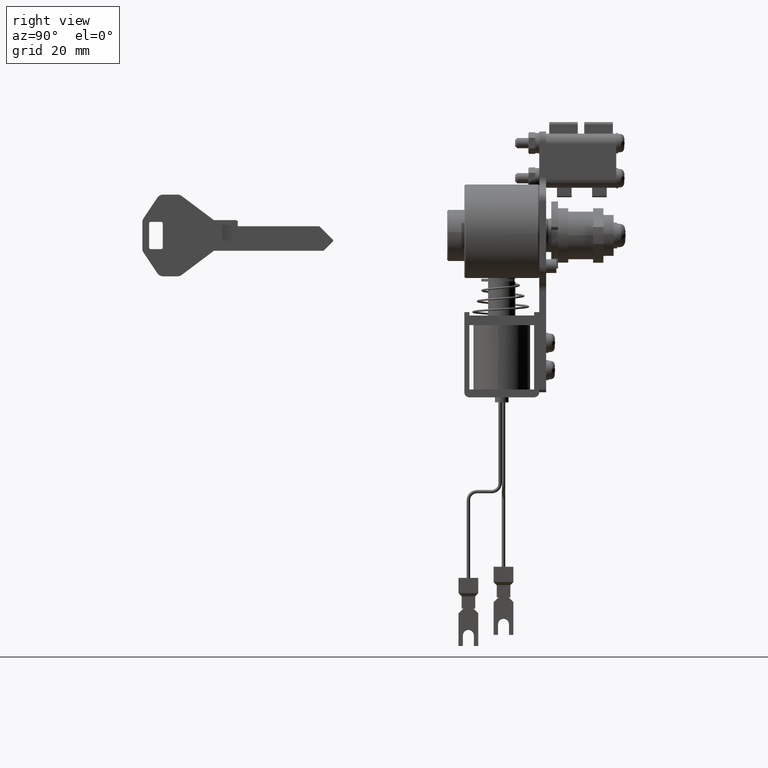
[diagram: clean part render]
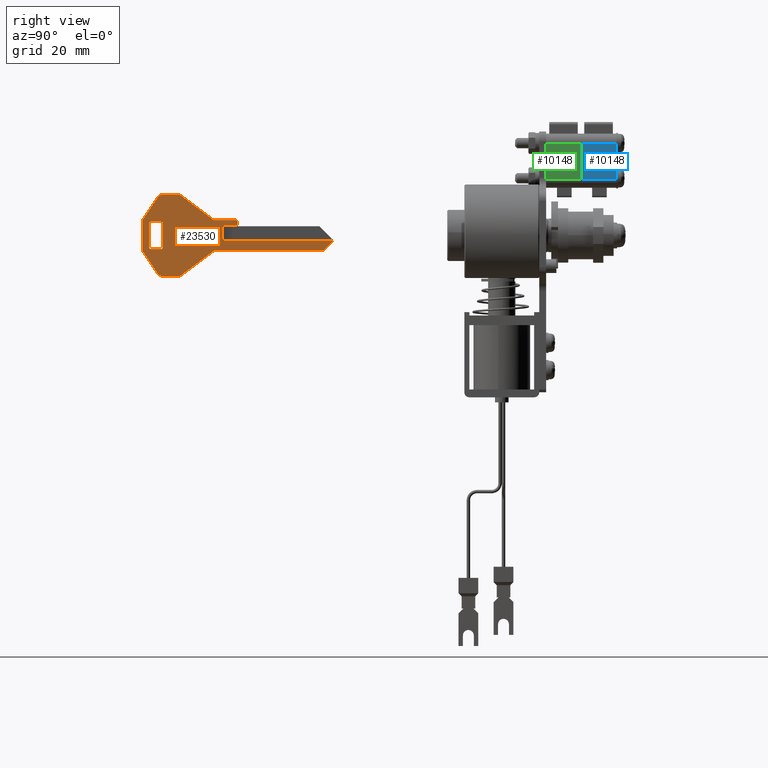
[diagram: same view with three faces highlighted in distinct colors, each labeled with its STEP entity id]
A machine part, right view with three faces highlighted in distinct colors.
Their STEP definitions:

[orange] entity #23530 — the highlighted face is a freeform B-spline surface patch.
#22681=CARTESIAN_POINT('',(-86.992412567850010,0.900000000000000,4.0));
#22682=VERTEX_POINT('',#22681);
#22688=CARTESIAN_POINT('',(-83.992412567850010,0.900000000000012,4.0));
#22689=VERTEX_POINT('',#22688);
#22690=CARTESIAN_POINT('',(-83.992412567850010,0.900000000000012,4.0));
#22691=CARTESIAN_POINT('',(-86.992412567850010,0.900000000000000,4.0));
#22692=QUASI_UNIFORM_CURVE('',1,(#22690,#22691),.UNSPECIFIED.,.F.,.U.);
#22693=EDGE_CURVE('',#22689,#22682,#22692,.T.);
#22733=CARTESIAN_POINT('',(-83.492412567850010,0.900000000000012,3.500000000000000));
#22734=VERTEX_POINT('',#22733);
#22735=CARTESIAN_POINT('',(-83.492412567850010,0.900000000000012,3.500000000000000));
#22736=CARTESIAN_POINT('',(-83.492412567850010,0.900000000000012,4.000000000000000));
#22737=CARTESIAN_POINT('',(-83.992412567850010,0.900000000000012,4.0));
#22745=(BOUNDED_CURVE()B_SPLINE_CURVE(2,(#22735,#22736,#22737),.UNSPECIFIED.,.F.,.U.)CURVE()GEOMETRIC_REPRESENTATION_ITEM()QUASI_UNIFORM_CURVE()RATIONAL_B_SPLINE_CURVE((1.0,0.707106781186548,1.0))REPRESENTATION_ITEM(''));
#22746=EDGE_CURVE('',#22734,#22689,#22745,.T.);
#22769=CARTESIAN_POINT('',(-83.492412567850010,0.900000000000012,-3.500000000000115));
#22770=VERTEX_POINT('',#22769);
#22771=CARTESIAN_POINT('',(-83.492412567850010,0.900000000000012,-3.500000000000115));
#22772=CARTESIAN_POINT('',(-83.492412567850010,0.900000000000012,3.500000000000000));
#22773=QUASI_UNIFORM_CURVE('',1,(#22771,#22772),.UNSPECIFIED.,.F.,.U.);
#22774=EDGE_CURVE('',#22770,#22734,#22773,.T.);
#22814=CARTESIAN_POINT('',(-83.992412567850010,0.900000000000012,-4.000000000000116));
#22815=VERTEX_POINT('',#22814);
#22816=CARTESIAN_POINT('',(-83.992412567850010,0.900000000000012,-4.000000000000115));
#22817=CARTESIAN_POINT('',(-83.492412567850010,0.900000000000012,-4.000000000000115));
#22818=CARTESIAN_POINT('',(-83.492412567850010,0.900000000000012,-3.500000000000115));
#22826=(BOUNDED_CURVE()B_SPLINE_CURVE(2,(#22816,#22817,#22818),.UNSPECIFIED.,.F.,.U.)CURVE()GEOMETRIC_REPRESENTATION_ITEM()QUASI_UNIFORM_CURVE()RATIONAL_B_SPLINE_CURVE((1.0,0.707106781186548,1.0))REPRESENTATION_ITEM(''));
#22827=EDGE_CURVE('',#22815,#22770,#22826,.T.);
#22850=CARTESIAN_POINT('',(-86.992412567850010,0.900000000000012,-4.000000000000116));
#22851=VERTEX_POINT('',#22850);
#22852=CARTESIAN_POINT('',(-86.992412567850010,0.900000000000012,-4.000000000000116));
#22853=CARTESIAN_POINT('',(-83.992412567850010,0.900000000000012,-4.000000000000116));
#22854=QUASI_UNIFORM_CURVE('',1,(#22852,#22853),.UNSPECIFIED.,.F.,.U.);
#22855=EDGE_CURVE('',#22851,#22815,#22854,.T.);
#22895=CARTESIAN_POINT('',(-87.492412567850010,0.900000000000012,-3.500000000000115));
#22896=VERTEX_POINT('',#22895);
#22897=CARTESIAN_POINT('',(-87.492412567850010,0.900000000000012,-3.500000000000115));
#22898=CARTESIAN_POINT('',(-87.492412567850025,0.900000000000012,-4.000000000000115));
#22899=CARTESIAN_POINT('',(-86.992412567850010,0.900000000000012,-4.000000000000115));
#22907=(BOUNDED_CURVE()B_SPLINE_CURVE(2,(#22897,#22898,#22899),.UNSPECIFIED.,.F.,.U.)CURVE()GEOMETRIC_REPRESENTATION_ITEM()QUASI_UNIFORM_CURVE()RATIONAL_B_SPLINE_CURVE((1.0,0.707106781186548,1.0))REPRESENTATION_ITEM(''));
#22908=EDGE_CURVE('',#22896,#22851,#22907,.T.);
#22931=CARTESIAN_POINT('',(-87.492412567850010,0.900000000000012,3.500000000000000));
#22932=VERTEX_POINT('',#22931);
#22933=CARTESIAN_POINT('',(-87.492412567850010,0.900000000000012,3.500000000000000));
#22934=CARTESIAN_POINT('',(-87.492412567850010,0.900000000000012,-3.500000000000115));
#22935=QUASI_UNIFORM_CURVE('',1,(#22933,#22934),.UNSPECIFIED.,.F.,.U.);
#22936=EDGE_CURVE('',#22932,#22896,#22935,.T.);
#22974=CARTESIAN_POINT('',(-86.992412567850010,0.900000000000012,4.0));
#22975=CARTESIAN_POINT('',(-87.492412567850025,0.900000000000012,4.000000000000000));
#22976=CARTESIAN_POINT('',(-87.492412567850010,0.900000000000012,3.500000000000000));
#22984=(BOUNDED_CURVE()B_SPLINE_CURVE(2,(#22974,#22975,#22976),.UNSPECIFIED.,.F.,.U.)CURVE()GEOMETRIC_REPRESENTATION_ITEM()QUASI_UNIFORM_CURVE()RATIONAL_B_SPLINE_CURVE((1.0,0.707106781186548,1.0))REPRESENTATION_ITEM(''));
#22985=EDGE_CURVE('',#22682,#22932,#22984,.T.);
#23005=CARTESIAN_POINT('',(-66.030196567850098,0.900000000000012,-3.000000000000115));
#23006=VERTEX_POINT('',#23005);
#23022=CARTESIAN_POINT('',(-66.030196567850098,0.900000000000012,1.499999999999886));
#23023=VERTEX_POINT('',#23022);
#23024=CARTESIAN_POINT('',(-66.030196567850098,0.900000000000012,1.499999999999886));
#23025=CARTESIAN_POINT('',(-66.030196567850098,0.900000000000012,-3.000000000000115));
#23026=QUASI_UNIFORM_CURVE('',1,(#23024,#23025),.UNSPECIFIED.,.F.,.U.);
#23027=EDGE_CURVE('',#23023,#23006,#23026,.T.);
#23175=CARTESIAN_POINT('',(-61.492412567850003,0.900000000000012,-3.000000000000115));
#23176=VERTEX_POINT('',#23175);
#23177=CARTESIAN_POINT('',(-66.030196567850098,0.900000000000012,-3.000000000000115));
#23178=CARTESIAN_POINT('',(-61.492412567850003,0.900000000000012,-3.000000000000115));
#23179=QUASI_UNIFORM_CURVE('',1,(#23177,#23178),.UNSPECIFIED.,.F.,.U.);
#23180=EDGE_CURVE('',#23006,#23176,#23179,.T.);
#23199=CARTESIAN_POINT('',(-33.492412567850053,0.900000000000012,1.499999999999886));
#23200=VERTEX_POINT('',#23199);
#23201=CARTESIAN_POINT('',(-33.492412567850053,0.900000000000012,1.499999999999886));
#23202=CARTESIAN_POINT('',(-66.030196567850098,0.900000000000012,1.499999999999886));
#23203=QUASI_UNIFORM_CURVE('',1,(#23201,#23202),.UNSPECIFIED.,.F.,.U.);
#23204=EDGE_CURVE('',#23200,#23023,#23203,.T.);
#23315=CARTESIAN_POINT('',(-92.289616664814588,0.900000000000000,13.198799953483340));
#23316=CARTESIAN_POINT('',(-30.695210974280549,0.900000000000000,13.198799953483340));
#23317=CARTESIAN_POINT('',(-92.289616664814588,0.900000000000000,-13.198800597213509));
#23318=CARTESIAN_POINT('',(-30.695210974280549,0.900000000000000,-13.198800597213509));
#23319=B_SPLINE_SURFACE_WITH_KNOTS('',1,1,((#23315,#23317),(#23316,#23318)),.UNSPECIFIED.,.F.,.F.,.U.,(2,2),(2,2),(0.0,61.594405690534039),(0.0,26.397600550696851),.UNSPECIFIED.);
#23320=CARTESIAN_POINT('',(-33.741406567850063,0.900000000000012,1.932431000000000));
#23321=VERTEX_POINT('',#23320);
#23322=CARTESIAN_POINT('',(-33.492412567850053,0.900000000000012,1.499999999999886));
#23323=CARTESIAN_POINT('',(-33.492412567850046,0.900000000000012,1.787900938874175));
#23324=CARTESIAN_POINT('',(-33.741406567850063,0.900000000000012,1.932431000000000));
#23332=(BOUNDED_CURVE()B_SPLINE_CURVE(2,(#23322,#23323,#23324),.UNSPECIFIED.,.F.,.U.)CURVE()GEOMETRIC_REPRESENTATION_ITEM()QUASI_UNIFORM_CURVE()RATIONAL_B_SPLINE_CURVE((1.0,0.866605855006405,1.0))REPRESENTATION_ITEM(''));
#23333=EDGE_CURVE('',#23200,#23321,#23332,.T.);
#23334=ORIENTED_EDGE('',*,*,#23333,.F.);
#23335=ORIENTED_EDGE('',*,*,#23204,.T.);
#23336=ORIENTED_EDGE('',*,*,#23027,.T.);
#23337=ORIENTED_EDGE('',*,*,#23180,.T.);
#23338=CARTESIAN_POINT('',(-61.492412567850003,0.900000000000012,-4.000000000000116));
#23339=VERTEX_POINT('',#23338);
#23340=CARTESIAN_POINT('',(-61.492412567850003,0.900000000000012,-3.000000000000115));
#23341=CARTESIAN_POINT('',(-61.492412567850003,0.900000000000012,-4.000000000000116));
#23342=QUASI_UNIFORM_CURVE('',1,(#23340,#23341),.UNSPECIFIED.,.F.,.U.);
#23343=EDGE_CURVE('',#23176,#23339,#23342,.T.);
#23344=ORIENTED_EDGE('',*,*,#23343,.T.);
#23345=CARTESIAN_POINT('',(-61.992412567850003,0.900000000000012,-4.500000000000110));
#23346=VERTEX_POINT('',#23345);
#23347=CARTESIAN_POINT('',(-61.992412567850003,0.900000000000012,-4.500000000000116));
#23348=CARTESIAN_POINT('',(-61.492412567850010,0.900000000000012,-4.500000000000116));
#23349=CARTESIAN_POINT('',(-61.492412567850003,0.900000000000012,-4.000000000000116));
#23357=(BOUNDED_CURVE()B_SPLINE_CURVE(2,(#23347,#23348,#23349),.UNSPECIFIED.,.F.,.U.)CURVE()GEOMETRIC_REPRESENTATION_ITEM()QUASI_UNIFORM_CURVE()RATIONAL_B_SPLINE_CURVE((1.0,0.707106781186548,1.0))REPRESENTATION_ITEM(''));
#23358=EDGE_CURVE('',#23346,#23339,#23357,.T.);
#23359=ORIENTED_EDGE('',*,*,#23358,.F.);
#23360=CARTESIAN_POINT('',(-68.492412567850010,0.900000000000012,-4.500000000000000));
#23361=VERTEX_POINT('',#23360);
#23362=CARTESIAN_POINT('',(-61.992412567850003,0.900000000000012,-4.500000000000110));
#23363=CARTESIAN_POINT('',(-68.492412567850010,0.900000000000012,-4.500000000000000));
#23364=QUASI_UNIFORM_CURVE('',1,(#23362,#23363),.UNSPECIFIED.,.F.,.U.);
#23365=EDGE_CURVE('',#23346,#23361,#23364,.T.);
#23366=ORIENTED_EDGE('',*,*,#23365,.T.);
#23367=CARTESIAN_POINT('',(-77.959078567850099,0.900000000000012,-11.600000000000000));
#23368=VERTEX_POINT('',#23367);
#23369=CARTESIAN_POINT('',(-68.492412567850010,0.900000000000012,-4.500000000000000));
#23370=CARTESIAN_POINT('',(-77.959078567850099,0.900000000000012,-11.600000000000000));
#23371=QUASI_UNIFORM_CURVE('',1,(#23369,#23370),.UNSPECIFIED.,.F.,.U.);
#23372=EDGE_CURVE('',#23361,#23368,#23371,.T.);
#23373=ORIENTED_EDGE('',*,*,#23372,.T.);
#23374=CARTESIAN_POINT('',(-79.159078567850003,0.900000000000012,-12.0));
#23375=VERTEX_POINT('',#23374);
#23376=CARTESIAN_POINT('',(-79.159078567850003,0.900000000000012,-12.0));
#23377=CARTESIAN_POINT('',(-78.492411901183374,0.900000000000012,-11.999999999999996));
#23378=CARTESIAN_POINT('',(-77.959078567850057,0.900000000000012,-11.600000000000049));
#23386=(BOUNDED_CURVE()B_SPLINE_CURVE(2,(#23376,#23377,#23378),.UNSPECIFIED.,.F.,.U.)CURVE()GEOMETRIC_REPRESENTATION_ITEM()QUASI_UNIFORM_CURVE()RATIONAL_B_SPLINE_CURVE((1.0,0.948683298050520,1.0))REPRESENTATION_ITEM(''));
#23387=EDGE_CURVE('',#23375,#23368,#23386,.T.);
#23388=ORIENTED_EDGE('',*,*,#23387,.F.);
#23389=CARTESIAN_POINT('',(-83.422044567850008,0.900000000000012,-12.0));
#23390=VERTEX_POINT('',#23389);
#23391=CARTESIAN_POINT('',(-79.159078567850003,0.900000000000012,-12.0));
#23392=CARTESIAN_POINT('',(-83.422044567850008,0.900000000000012,-12.0));
#23393=QUASI_UNIFORM_CURVE('',1,(#23391,#23392),.UNSPECIFIED.,.F.,.U.);
#23394=EDGE_CURVE('',#23375,#23390,#23393,.T.);
#23395=ORIENTED_EDGE('',*,*,#23394,.T.);
#23396=CARTESIAN_POINT('',(-85.086145147347395,0.900000000000012,-11.109400406217899));
#23397=VERTEX_POINT('',#23396);
#23398=CARTESIAN_POINT('',(-85.086145147347395,0.900000000000012,-11.109400406217899));
#23399=CARTESIAN_POINT('',(-84.492412074183179,0.900000000000012,-12.0));
#23400=CARTESIAN_POINT('',(-83.422044567850008,0.900000000000012,-12.0));
#23408=(BOUNDED_CURVE()B_SPLINE_CURVE(2,(#23398,#23399,#23400),.UNSPECIFIED.,.F.,.U.)CURVE()GEOMETRIC_REPRESENTATION_ITEM()QUASI_UNIFORM_CURVE()RATIONAL_B_SPLINE_CURVE((1.0,0.881674600719832,1.0))REPRESENTATION_ITEM(''));
#23409=EDGE_CURVE('',#23397,#23390,#23408,.T.);
#23410=ORIENTED_EDGE('',*,*,#23409,.F.);
#23411=CARTESIAN_POINT('',(-89.156512567850015,0.900000000000012,-5.003849000000060));
#23412=VERTEX_POINT('',#23411);
#23413=CARTESIAN_POINT('',(-85.086145147347395,0.900000000000012,-11.109400406217899));
#23414=CARTESIAN_POINT('',(-89.156512567850015,0.900000000000012,-5.003849000000060));
#23415=QUASI_UNIFORM_CURVE('',1,(#23413,#23414),.UNSPECIFIED.,.F.,.U.);
#23416=EDGE_CURVE('',#23397,#23412,#23415,.T.);
#23417=ORIENTED_EDGE('',*,*,#23416,.T.);
#23418=CARTESIAN_POINT('',(-89.492412567849996,0.900000000000012,-3.894449000000065));
#23419=VERTEX_POINT('',#23418);
#23420=CARTESIAN_POINT('',(-89.492412567850010,0.900000000000012,-3.894449000000065));
#23421=CARTESIAN_POINT('',(-89.492412567849996,0.900000000000012,-4.500000275464052));
#23422=CARTESIAN_POINT('',(-89.156512567850015,0.900000000000012,-5.003849000000060));
#23430=(BOUNDED_CURVE()B_SPLINE_CURVE(2,(#23420,#23421,#23422),.UNSPECIFIED.,.F.,.U.)CURVE()GEOMETRIC_REPRESENTATION_ITEM()QUASI_UNIFORM_CURVE()RATIONAL_B_SPLINE_CURVE((1.0,0.957092026489053,1.0))REPRESENTATION_ITEM(''));
#23431=EDGE_CURVE('',#23419,#23412,#23430,.T.);
#23432=ORIENTED_EDGE('',*,*,#23431,.F.);
#23433=CARTESIAN_POINT('',(-89.492412567849996,0.900000000000012,3.894449000000000));
#23434=VERTEX_POINT('',#23433);
#23435=CARTESIAN_POINT('',(-89.492412567849996,0.900000000000012,-3.894449000000065));
#23436=CARTESIAN_POINT('',(-89.492412567849996,0.900000000000012,3.894449000000000));
#23437=QUASI_UNIFORM_CURVE('',1,(#23435,#23436),.UNSPECIFIED.,.F.,.U.);
#23438=EDGE_CURVE('',#23419,#23434,#23437,.T.);
#23439=ORIENTED_EDGE('',*,*,#23438,.T.);
#23440=CARTESIAN_POINT('',(-89.156513282320489,0.900000000000012,5.003847928294070));
#23441=VERTEX_POINT('',#23440);
#23442=CARTESIAN_POINT('',(-89.156513282320446,0.900000000000012,5.003847928294047));
#23443=CARTESIAN_POINT('',(-89.492412181670630,0.900000000000012,4.499999455484289));
#23444=CARTESIAN_POINT('',(-89.492412567849996,0.900000000000012,3.894449000000000));
#23452=(BOUNDED_CURVE()B_SPLINE_CURVE(2,(#23442,#23443,#23444),.UNSPECIFIED.,.F.,.U.)CURVE()GEOMETRIC_REPRESENTATION_ITEM()QUASI_UNIFORM_CURVE()RATIONAL_B_SPLINE_CURVE((1.0,0.957092135320610,1.0))REPRESENTATION_ITEM(''));
#23453=EDGE_CURVE('',#23441,#23434,#23452,.T.);
#23454=ORIENTED_EDGE('',*,*,#23453,.F.);
#23455=CARTESIAN_POINT('',(-85.086145147347395,0.900000000000012,11.109400406217800));
#23456=VERTEX_POINT('',#23455);
#23457=CARTESIAN_POINT('',(-89.156513282320489,0.900000000000012,5.003847928294070));
#23458=CARTESIAN_POINT('',(-85.086145147347395,0.900000000000012,11.109400406217800));
#23459=QUASI_UNIFORM_CURVE('',1,(#23457,#23458),.UNSPECIFIED.,.F.,.U.);
#23460=EDGE_CURVE('',#23441,#23456,#23459,.T.);
#23461=ORIENTED_EDGE('',*,*,#23460,.T.);
#23462=CARTESIAN_POINT('',(-83.422044567850008,0.900000000000012,11.999999999999879));
#23463=VERTEX_POINT('',#23462);
#23464=CARTESIAN_POINT('',(-83.422044567850008,0.900000000000012,11.999999999999890));
#23465=CARTESIAN_POINT('',(-84.492412074183164,0.900000000000012,11.999999999999885));
#23466=CARTESIAN_POINT('',(-85.086145147347381,0.900000000000012,11.109400406217800));
#23474=(BOUNDED_CURVE()B_SPLINE_CURVE(2,(#23464,#23465,#23466),.UNSPECIFIED.,.F.,.U.)CURVE()GEOMETRIC_REPRESENTATION_ITEM()QUASI_UNIFORM_CURVE()RATIONAL_B_SPLINE_CURVE((1.0,0.881674600719833,1.0))REPRESENTATION_ITEM(''));
#23475=EDGE_CURVE('',#23463,#23456,#23474,.T.);
#23476=ORIENTED_EDGE('',*,*,#23475,.F.);
#23477=CARTESIAN_POINT('',(-79.159078567850003,0.900000000000012,12.0));
#23478=VERTEX_POINT('',#23477);
#23479=CARTESIAN_POINT('',(-83.422044567850008,0.900000000000012,11.999999999999879));
#23480=CARTESIAN_POINT('',(-79.159078567850003,0.900000000000012,12.0));
#23481=QUASI_UNIFORM_CURVE('',1,(#23479,#23480),.UNSPECIFIED.,.F.,.U.);
#23482=EDGE_CURVE('',#23463,#23478,#23481,.T.);
#23483=ORIENTED_EDGE('',*,*,#23482,.T.);
#23484=CARTESIAN_POINT('',(-77.959078557960098,0.900000000000012,11.599999992582459));
#23485=VERTEX_POINT('',#23484);
#23486=CARTESIAN_POINT('',(-77.959078557960098,0.900000000000012,11.599999992582459));
#23487=CARTESIAN_POINT('',(-78.492411894315339,0.900000000000012,11.999999999999890));
#23488=CARTESIAN_POINT('',(-79.159078567850003,0.900000000000012,11.999999999999890));
#23496=(BOUNDED_CURVE()B_SPLINE_CURVE(2,(#23486,#23487,#23488),.UNSPECIFIED.,.F.,.U.)CURVE()GEOMETRIC_REPRESENTATION_ITEM()QUASI_UNIFORM_CURVE()RATIONAL_B_SPLINE_CURVE((1.0,0.948683297073182,1.0))REPRESENTATION_ITEM(''));
#23497=EDGE_CURVE('',#23485,#23478,#23496,.T.);
#23498=ORIENTED_EDGE('',*,*,#23497,.F.);
#23499=CARTESIAN_POINT('',(-68.492412567850010,0.900000000000012,4.499999999999885));
#23500=VERTEX_POINT('',#23499);
#23501=CARTESIAN_POINT('',(-77.959078557960098,0.900000000000012,11.599999992582459));
#23502=CARTESIAN_POINT('',(-68.492412567850010,0.900000000000012,4.499999999999885));
#23503=QUASI_UNIFORM_CURVE('',1,(#23501,#23502),.UNSPECIFIED.,.F.,.U.);
#23504=EDGE_CURVE('',#23485,#23500,#23503,.T.);
#23505=ORIENTED_EDGE('',*,*,#23504,.T.);
#23506=CARTESIAN_POINT('',(-36.308976567850053,0.900000000000012,4.499999999999885));
#23507=VERTEX_POINT('',#23506);
#23508=CARTESIAN_POINT('',(-68.492412567850010,0.900000000000012,4.499999999999885));
#23509=CARTESIAN_POINT('',(-36.308976567850053,0.900000000000012,4.499999999999885));
#23510=QUASI_UNIFORM_CURVE('',1,(#23508,#23509),.UNSPECIFIED.,.F.,.U.);
#23511=EDGE_CURVE('',#23500,#23507,#23510,.T.);
#23512=ORIENTED_EDGE('',*,*,#23511,.T.);
#23513=CARTESIAN_POINT('',(-36.308976567850053,0.900000000000012,4.499999999999885));
#23514=CARTESIAN_POINT('',(-33.741406567850063,0.900000000000012,1.932431000000000));
#23515=QUASI_UNIFORM_CURVE('',1,(#23513,#23514),.UNSPECIFIED.,.F.,.U.);
#23516=EDGE_CURVE('',#23507,#23321,#23515,.T.);
#23517=ORIENTED_EDGE('',*,*,#23516,.T.);
#23518=EDGE_LOOP('',(#23334,#23335,#23336,#23337,#23344,#23359,#23366,#23373,#23388,#23395,#23410,#23417,#23432,#23439,#23454,#23461,#23476,#23483,#23498,#23505,#23512,#23517));
#23519=FACE_OUTER_BOUND('',#23518,.T.);
#23520=ORIENTED_EDGE('',*,*,#22693,.T.);
#23521=ORIENTED_EDGE('',*,*,#22985,.T.);
#23522=ORIENTED_EDGE('',*,*,#22936,.T.);
#23523=ORIENTED_EDGE('',*,*,#22908,.T.);
#23524=ORIENTED_EDGE('',*,*,#22855,.T.);
#23525=ORIENTED_EDGE('',*,*,#22827,.T.);
#23526=ORIENTED_EDGE('',*,*,#22774,.T.);
#23527=ORIENTED_EDGE('',*,*,#22746,.T.);
#23528=EDGE_LOOP('',(#23520,#23521,#23522,#23523,#23524,#23525,#23526,#23527));
#23529=FACE_BOUND('',#23528,.T.);
#23530=ADVANCED_FACE('',(#23519,#23529),#23319,.T.);

[blue] entity #10148 — the highlighted face is a freeform B-spline surface patch.
#9946=CARTESIAN_POINT('',(29.0,-4.800000000000000,16.500000000000000));
#9947=VERTEX_POINT('',#9946);
#9961=CARTESIAN_POINT('',(29.0,-4.799999999999900,26.899999999999999));
#9962=VERTEX_POINT('',#9961);
#9963=CARTESIAN_POINT('',(29.0,-4.800000000000000,16.500000000000000));
#9964=CARTESIAN_POINT('',(29.0,-4.799999999999900,26.899999999999999));
#9965=QUASI_UNIFORM_CURVE('',1,(#9963,#9964),.UNSPECIFIED.,.F.,.U.);
#9966=EDGE_CURVE('',#9947,#9962,#9965,.T.);
#10010=CARTESIAN_POINT('',(39.299999999999997,-4.799999999999900,26.899999999999999));
#10011=VERTEX_POINT('',#10010);
#10025=CARTESIAN_POINT('',(39.299999999999997,-4.800000000000000,16.500000000000000));
#10026=VERTEX_POINT('',#10025);
#10027=CARTESIAN_POINT('',(39.299999999999997,-4.800000000000000,16.500000000000000));
#10028=CARTESIAN_POINT('',(39.299999999999997,-4.799999999999900,26.899999999999999));
#10029=QUASI_UNIFORM_CURVE('',1,(#10027,#10028),.UNSPECIFIED.,.F.,.U.);
#10030=EDGE_CURVE('',#10026,#10011,#10029,.T.);
#10119=CARTESIAN_POINT('',(39.299999999999997,-4.799999999999900,26.899999999999999));
#10120=CARTESIAN_POINT('',(29.0,-4.799999999999900,26.899999999999999));
#10121=QUASI_UNIFORM_CURVE('',1,(#10119,#10120),.UNSPECIFIED.,.F.,.U.);
#10122=EDGE_CURVE('',#10011,#9962,#10121,.T.);
#10133=CARTESIAN_POINT('',(28.485515056762232,-4.799999999999900,27.419479589331750));
#10134=CARTESIAN_POINT('',(28.485515056762232,-4.799999999999900,15.980519759785530));
#10135=CARTESIAN_POINT('',(39.814484482791897,-4.799999999999900,27.419479589331761));
#10136=CARTESIAN_POINT('',(39.814484482791897,-4.799999999999900,15.980519759785530));
#10137=B_SPLINE_SURFACE_WITH_KNOTS('',1,1,((#10133,#10135),(#10134,#10136)),.UNSPECIFIED.,.F.,.F.,.U.,(2,2),(2,2),(0.0,11.438959829546221),(0.0,11.328969426029669),.UNSPECIFIED.);
#10138=ORIENTED_EDGE('',*,*,#9966,.F.);
#10139=CARTESIAN_POINT('',(39.299999999999997,-4.800000000000000,16.500000000000000));
#10140=CARTESIAN_POINT('',(29.0,-4.800000000000000,16.500000000000000));
#10141=QUASI_UNIFORM_CURVE('',1,(#10139,#10140),.UNSPECIFIED.,.F.,.U.);
#10142=EDGE_CURVE('',#10026,#9947,#10141,.T.);
#10143=ORIENTED_EDGE('',*,*,#10142,.F.);
#10144=ORIENTED_EDGE('',*,*,#10030,.T.);
#10145=ORIENTED_EDGE('',*,*,#10122,.T.);
#10146=EDGE_LOOP('',(#10138,#10143,#10144,#10145));
#10147=FACE_OUTER_BOUND('',#10146,.T.);
#10148=ADVANCED_FACE('',(#10147),#10137,.T.);

[green] entity #10148 — the highlighted face is a freeform B-spline surface patch.
#9946=CARTESIAN_POINT('',(29.0,-4.800000000000000,16.500000000000000));
#9947=VERTEX_POINT('',#9946);
#9961=CARTESIAN_POINT('',(29.0,-4.799999999999900,26.899999999999999));
#9962=VERTEX_POINT('',#9961);
#9963=CARTESIAN_POINT('',(29.0,-4.800000000000000,16.500000000000000));
#9964=CARTESIAN_POINT('',(29.0,-4.799999999999900,26.899999999999999));
#9965=QUASI_UNIFORM_CURVE('',1,(#9963,#9964),.UNSPECIFIED.,.F.,.U.);
#9966=EDGE_CURVE('',#9947,#9962,#9965,.T.);
#10010=CARTESIAN_POINT('',(39.299999999999997,-4.799999999999900,26.899999999999999));
#10011=VERTEX_POINT('',#10010);
#10025=CARTESIAN_POINT('',(39.299999999999997,-4.800000000000000,16.500000000000000));
#10026=VERTEX_POINT('',#10025);
#10027=CARTESIAN_POINT('',(39.299999999999997,-4.800000000000000,16.500000000000000));
#10028=CARTESIAN_POINT('',(39.299999999999997,-4.799999999999900,26.899999999999999));
#10029=QUASI_UNIFORM_CURVE('',1,(#10027,#10028),.UNSPECIFIED.,.F.,.U.);
#10030=EDGE_CURVE('',#10026,#10011,#10029,.T.);
#10119=CARTESIAN_POINT('',(39.299999999999997,-4.799999999999900,26.899999999999999));
#10120=CARTESIAN_POINT('',(29.0,-4.799999999999900,26.899999999999999));
#10121=QUASI_UNIFORM_CURVE('',1,(#10119,#10120),.UNSPECIFIED.,.F.,.U.);
#10122=EDGE_CURVE('',#10011,#9962,#10121,.T.);
#10133=CARTESIAN_POINT('',(28.485515056762232,-4.799999999999900,27.419479589331750));
#10134=CARTESIAN_POINT('',(28.485515056762232,-4.799999999999900,15.980519759785530));
#10135=CARTESIAN_POINT('',(39.814484482791897,-4.799999999999900,27.419479589331761));
#10136=CARTESIAN_POINT('',(39.814484482791897,-4.799999999999900,15.980519759785530));
#10137=B_SPLINE_SURFACE_WITH_KNOTS('',1,1,((#10133,#10135),(#10134,#10136)),.UNSPECIFIED.,.F.,.F.,.U.,(2,2),(2,2),(0.0,11.438959829546221),(0.0,11.328969426029669),.UNSPECIFIED.);
#10138=ORIENTED_EDGE('',*,*,#9966,.F.);
#10139=CARTESIAN_POINT('',(39.299999999999997,-4.800000000000000,16.500000000000000));
#10140=CARTESIAN_POINT('',(29.0,-4.800000000000000,16.500000000000000));
#10141=QUASI_UNIFORM_CURVE('',1,(#10139,#10140),.UNSPECIFIED.,.F.,.U.);
#10142=EDGE_CURVE('',#10026,#9947,#10141,.T.);
#10143=ORIENTED_EDGE('',*,*,#10142,.F.);
#10144=ORIENTED_EDGE('',*,*,#10030,.T.);
#10145=ORIENTED_EDGE('',*,*,#10122,.T.);
#10146=EDGE_LOOP('',(#10138,#10143,#10144,#10145));
#10147=FACE_OUTER_BOUND('',#10146,.T.);
#10148=ADVANCED_FACE('',(#10147),#10137,.T.);